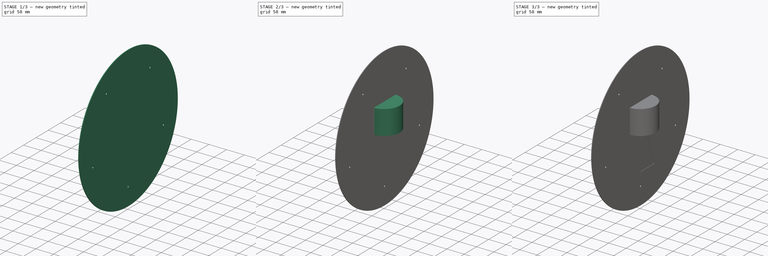
[diagram: build sequence overview — one tinted view per stage of 3, left to right]
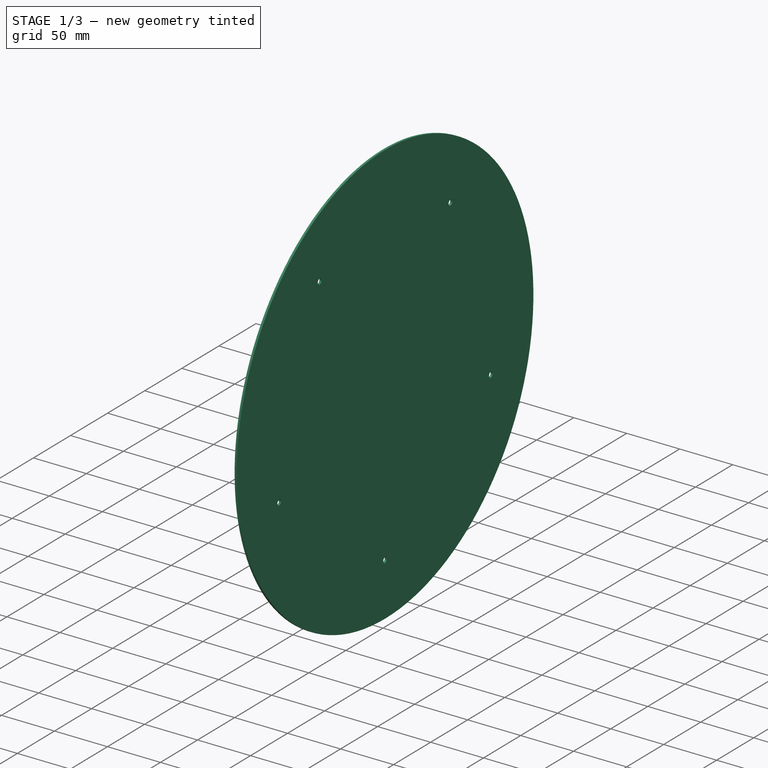
[diagram: stage 1 of 3 — iso view after this stage's code; geometry added in this stage tinted green]
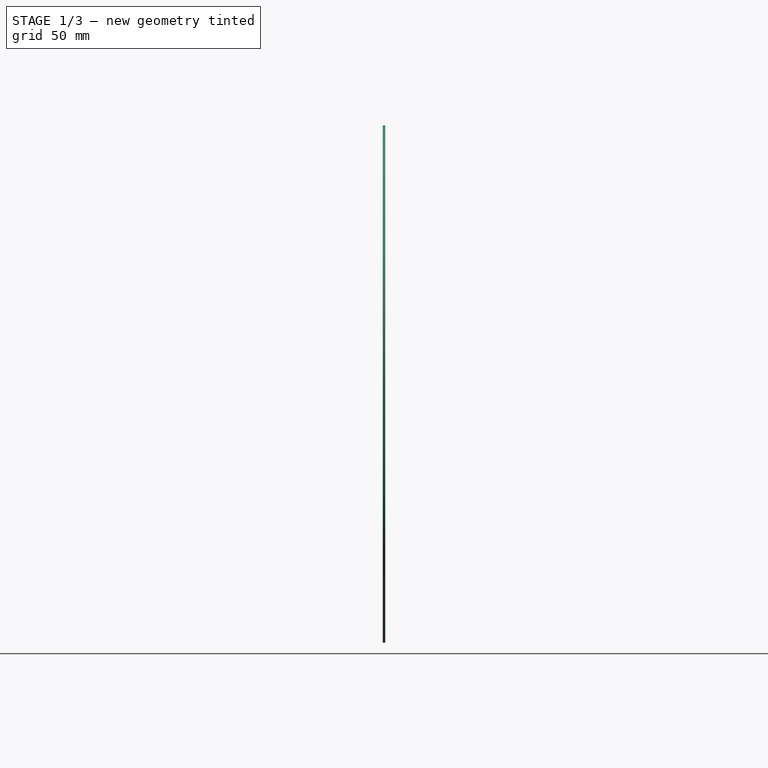
[diagram: stage 1 of 3 — front view after this stage's code; geometry added in this stage tinted green]
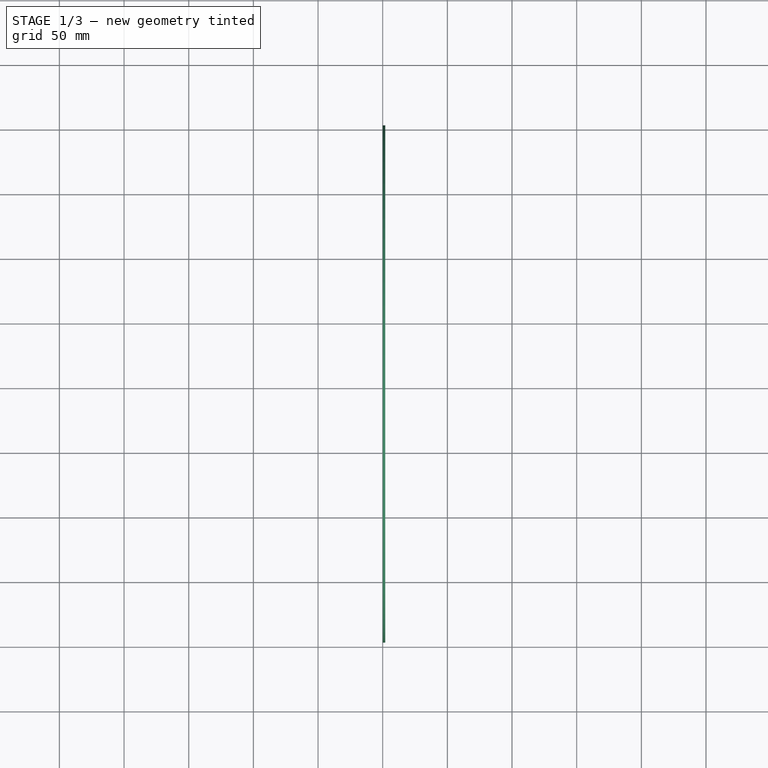
[diagram: stage 1 of 3 — top view after this stage's code; geometry added in this stage tinted green]
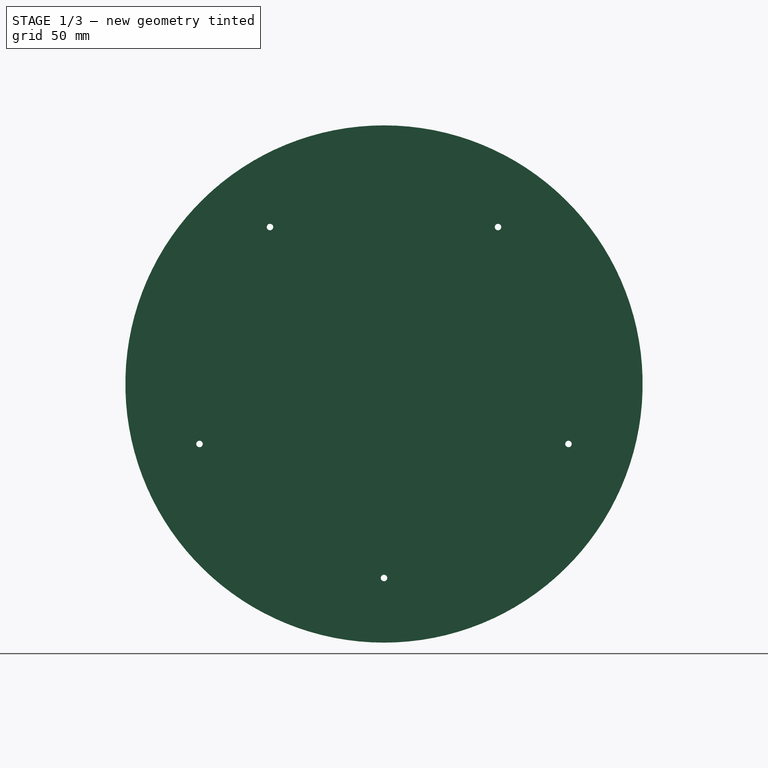
[diagram: stage 1 of 3 — right view after this stage's code; geometry added in this stage tinted green]
FCSTD DOCUMENT  (FreeCAD 0.19R24291 (Git))
Label: ferris wheel
License: All rights reserved
LicenseURL: http://en.wikipedia.org/wiki/All_rights_reserved
objects: Sketcher::SketchObject×5, PartDesign::Pad×4, PartDesign::Body×3, Spreadsheet::Sheet×1, Part::Cylinder×1, PartDesign::PolarPattern×1
note: 18 computed .brp shape members not serialized (recipe doc carries the construction recipe); baked Part::Feature solids carry a one-line shape summary decoded from their .brp

FEATURE [Sketcher::SketchObject] Sketch003
  FullyConstrained = true
  MapMode = 5
  Placement = pos=(0,0,0) rot=(0.57735,0.57735,0.57735;2.0944rad)
  Support = -> [YZ_Plane002]
  expr: Constraints[12] = Spreadsheet.bearing_ring_axle_diameter
  expr: Constraints[9] = 360 / <<Spreadsheet>>.partsNumber / 2
  expr: Constraints[6] = 360 / Spreadsheet.partsNumber
  sketch-geometry (5):
    g0: ArcOfCircle CenterX=0 CenterY=0 CenterZ=0 NormalX=0 NormalY=0 NormalZ=1 AngleXU=0 Radius=200 StartAngle=0.314159 EndAngle=1.5708
    g1: LineSegment StartX=0 StartY=0 StartZ=0 EndX=1.22e-14 EndY=200 EndZ=0
    g2: LineSegment StartX=0 StartY=0 StartZ=0 EndX=190.211 EndY=61.8034 EndZ=0
    g3: Circle CenterX=88.1678 CenterY=121.353 CenterZ=0 NormalX=0 NormalY=0 NormalZ=1 AngleXU=0 Radius=2.5
    g4: LineSegment StartX=0 StartY=0 StartZ=0 EndX=88.1678 EndY=121.353 EndZ=0
  constraints (13):
    c: Coincident(g0,g-1)
    c: PointOnObject(g0,g-2)
    c: Coincident(g1,g0)
    c: Coincident(g1,g0)
    c: Coincident(g2,g0)
    c: Coincident(g2,g0)
    c: Angle(g2,g1) = 1.25664
    c: Coincident(g4,g0)
    c: Coincident(g4,g3)
    c: Angle(g4,g-2) = 0.628319
    c: Radius(g0) = 200
    c: Distance(g4) = 150
    c: Diameter(g3) = 5
FEATURE [PartDesign::Pad] Pad003
  Direction = (1,1,1)
  Length = 2
  Length2 = 100
  Placement = pos=(0,0,0) rot=(0.57735,0.57735,0.57735;2.0944rad)
  Profile = -> Sketch003
  Type = 0
FEATURE [PartDesign::PolarPattern] PolarPattern
  Angle = 360
  Axis = -> Sketch003 [N_Axis]
  BaseFeature = -> Pad003
  Occurrences = 5
  Originals = -> [Pad003]
  Placement = pos=(0,0,0) rot=(0.57735,0.57735,0.57735;2.0944rad)
FEATURE [Sketcher::SketchObject] Sketch004
  FullyConstrained = true
  MapMode = 5
  Placement = pos=(0,0,0) rot=(0.57735,0.57735,0.57735;2.0944rad)
  Support = -> [YZ_Plane002]
FEATURE [PartDesign::Body] Body002
  Group = -> [Sketch003,Pad003,PolarPattern,Sketch004]
  Origin = -> Origin002
  Tip = -> PolarPattern
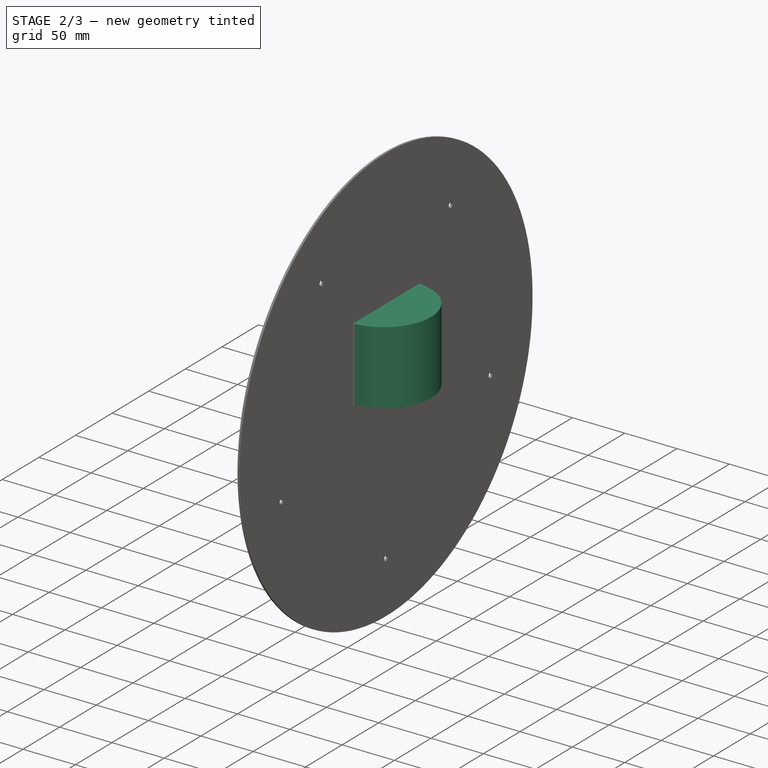
[diagram: stage 2 of 3 — iso view after this stage's code; geometry added in this stage tinted green]
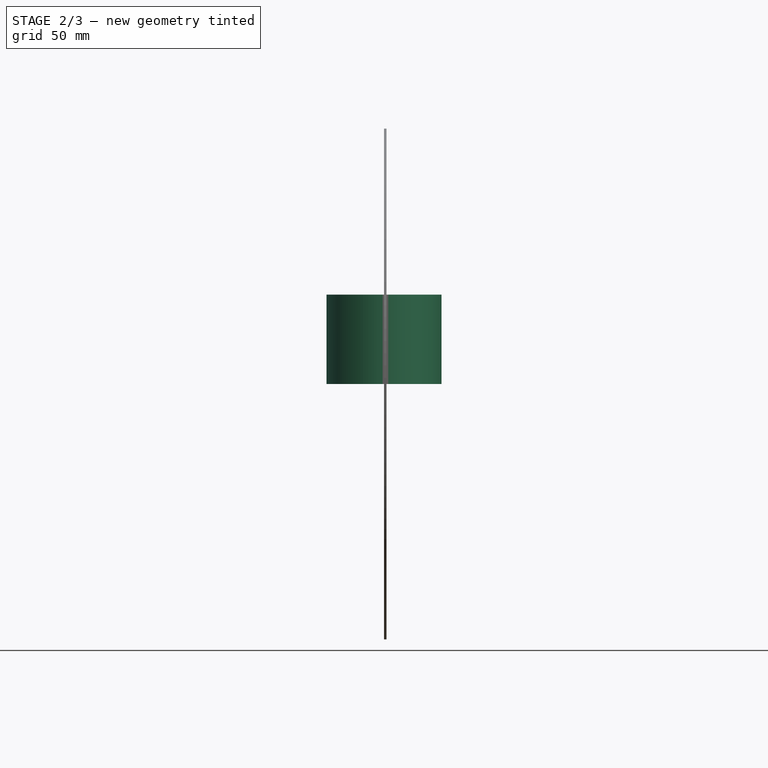
[diagram: stage 2 of 3 — front view after this stage's code; geometry added in this stage tinted green]
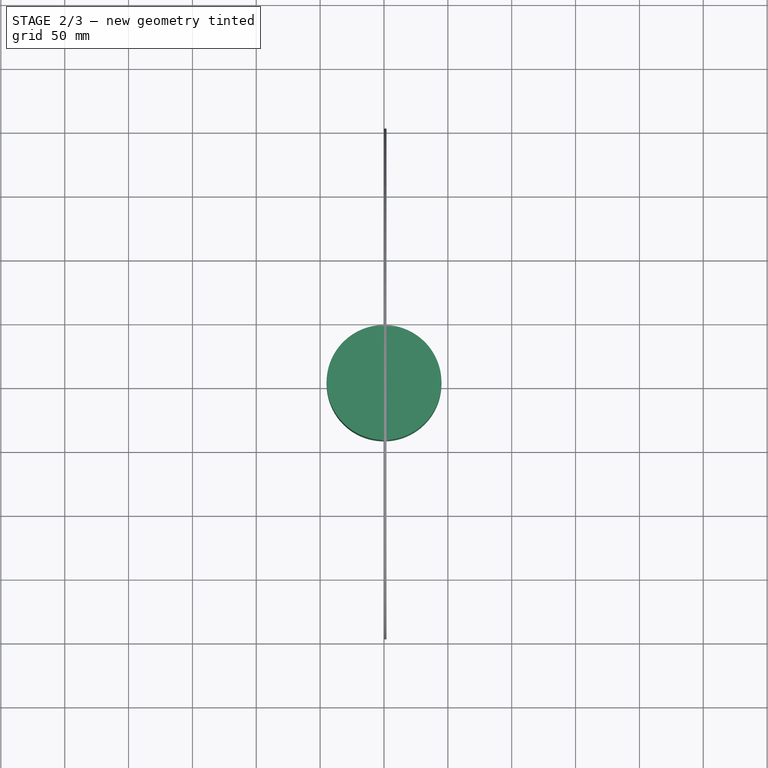
[diagram: stage 2 of 3 — top view after this stage's code; geometry added in this stage tinted green]
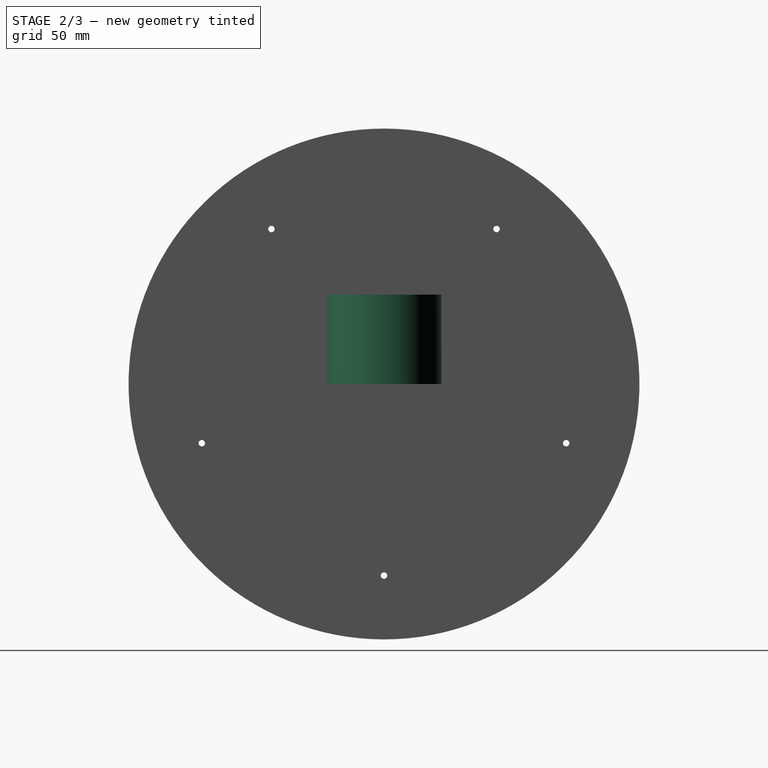
[diagram: stage 2 of 3 — right view after this stage's code; geometry added in this stage tinted green]
FEATURE [PartDesign::Body] Body
  Group = -> [Sketch,Pad]
  Origin = -> Origin
  Tip = -> Pad
FEATURE [Sketcher::SketchObject] Sketch001
  FullyConstrained = false
  MapMode = 5
  Placement = pos=(0,0,0) rot=(0.57735,0.57735,0.57735;2.0944rad)
  Support = -> [YZ_Plane001]
  expr: Constraints[5] = 360 / Spreadsheet.partsNumber
  sketch-geometry (3):
    g0: LineSegment StartX=2.797e-13 StartY=0 StartZ=0 EndX=2.797e-13 EndY=25.6524 EndZ=0
    g1: LineSegment StartX=2.797e-13 StartY=0 StartZ=0 EndX=24.3969 EndY=7.92704 EndZ=0
    g2: ArcOfCircle CenterX=2.797e-13 CenterY=0 CenterZ=0 NormalX=0 NormalY=0 NormalZ=1 AngleXU=0 Radius=25.6524 StartAngle=0.314159 EndAngle=1.5708
  constraints (7):
    c: Coincident(g0,g-1)
    c: Coincident(g1,g0)
    c: Coincident(g2,g0)
    c: Coincident(g2,g0)
    c: Coincident(g2,g1)
    c: Angle(g1,g0) = 1.25664
    c: Vertical(g0)
FEATURE [PartDesign::Pad] Pad001
  Direction = (1,1,1)
  Length = 10
  Length2 = 100
  Placement = pos=(0,0,0) rot=(0.57735,0.57735,0.57735;2.0944rad)
  Profile = -> Sketch001
  Type = 0
FEATURE [PartDesign::Body] Body001
  Group = -> [Sketch001,Pad001,Sketch002,Pad002]
  Origin = -> Origin001
  Tip = -> Pad002
FEATURE [Part::Cylinder] Cylinder
  Angle = 360
  AttacherType = Attacher::AttachEngine3D
  Height = 70
  Radius = 45
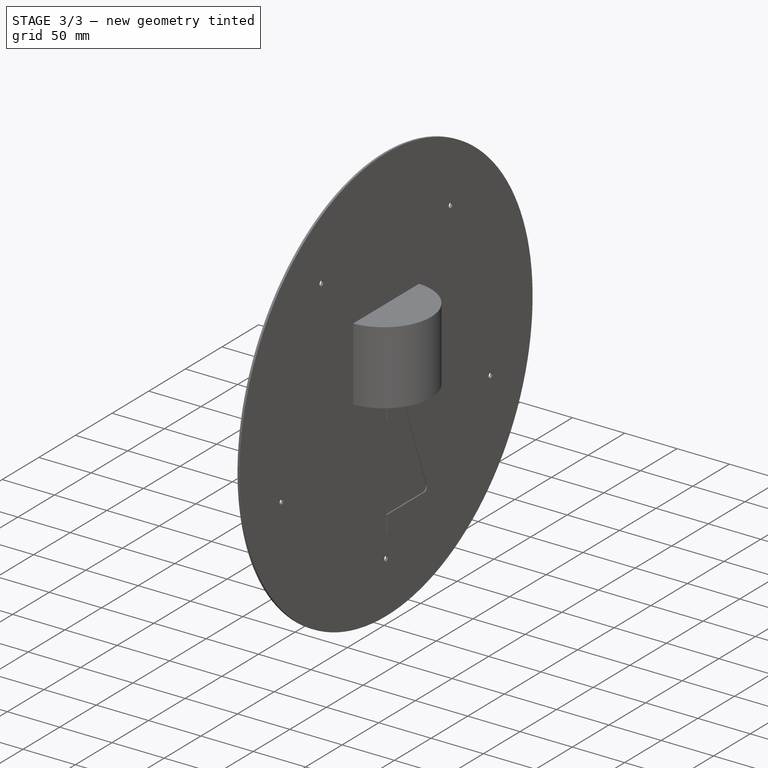
[diagram: stage 3 of 3 — iso view after this stage's code; geometry added in this stage tinted green]
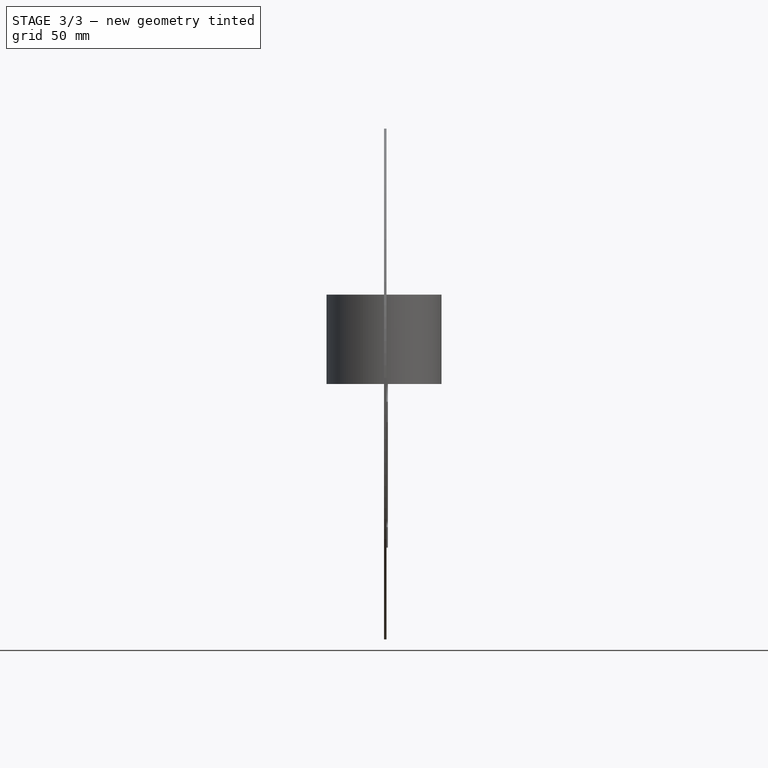
[diagram: stage 3 of 3 — front view after this stage's code; geometry added in this stage tinted green]
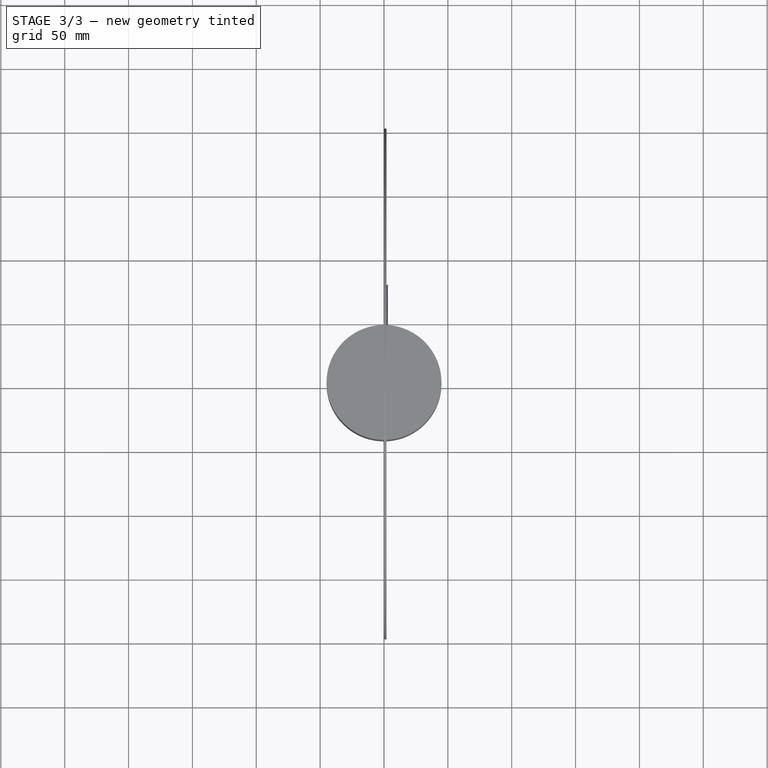
[diagram: stage 3 of 3 — top view after this stage's code; geometry added in this stage tinted green]
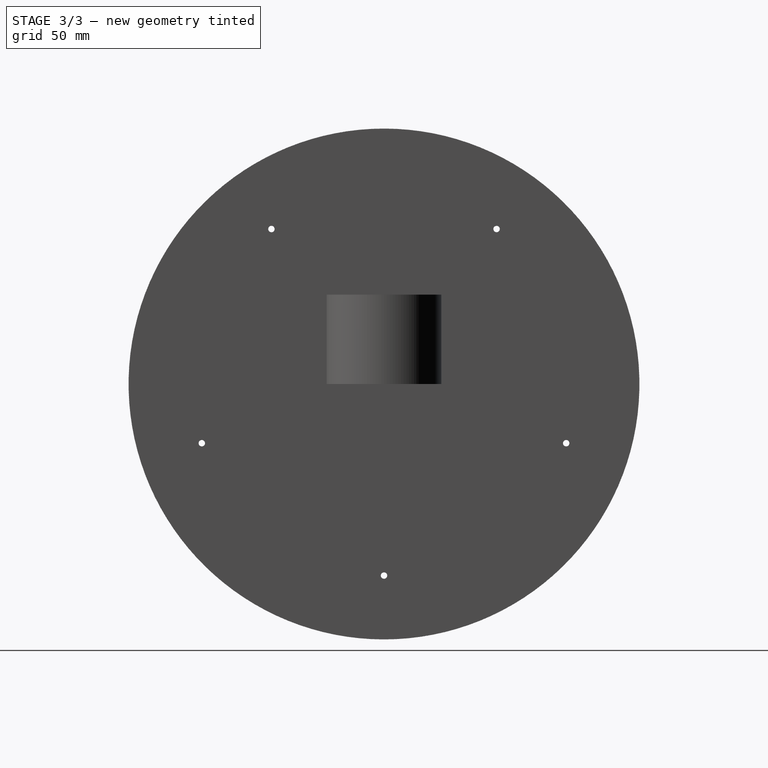
[diagram: stage 3 of 3 — right view after this stage's code; geometry added in this stage tinted green]
FEATURE [Sketcher::SketchObject] Sketch
  FullyConstrained = false
  MapMode = 5
  Placement = pos=(0,0,0) rot=(0.57735,0.57735,0.57735;2.0944rad)
  Support = -> [YZ_Plane]
  sketch-geometry (13):
    g0: ArcOfCircle CenterX=0 CenterY=0 CenterZ=0 NormalX=0 NormalY=0 NormalZ=1 AngleXU=0 Radius=13.8516 StartAngle=4.71239 EndAngle=7.85398
    g1: ArcOfCircle CenterX=0 CenterY=0 CenterZ=0 NormalX=0 NormalY=0 NormalZ=1 AngleXU=0 Radius=29.8516 StartAngle=0.368622 EndAngle=1.5708
    g2: LineSegment StartX=79.8559 StartY=-128.084 StartZ=0 EndX=0 EndY=-128.084 EndZ=0
    g3: LineSegment StartX=0 StartY=-128.084 StartZ=0 EndX=0 EndY=-112.084 EndZ=0
    g4: LineSegment StartX=0 StartY=-112.084 StartZ=0 EndX=50.7661 EndY=-112.084 EndZ=0
    g5: LineSegment StartX=54.2401 StartY=-107.125 StartZ=0 EndX=22.4523 EndY=-19.6725 EndZ=0
    g6: ArcOfCircle CenterX=0 CenterY=0 CenterZ=0 NormalX=0 NormalY=0 NormalZ=1 AngleXU=0 Radius=29.8516 StartAngle=4.71239 EndAngle=5.56368
    g7: LineSegment StartX=-2.5e-15 StartY=-29.8516 StartZ=0 EndX=-2.5e-15 EndY=-13.8516 EndZ=0
    g8: LineSegment StartX=4.2e-15 StartY=13.8516 StartZ=0 EndX=4.2e-15 EndY=29.8516 EndZ=0
    g9: ArcOfCircle CenterX=50.7661 CenterY=-108.387 CenterZ=0 NormalX=0 NormalY=0 NormalZ=1 AngleXU=0 Radius=3.69636 StartAngle=4.71239 EndAngle=6.63182
    g10: LineSegment StartX=27.8463 StartY=10.7564 StartZ=0 EndX=78.3434 EndY=-119.971 EndZ=0
    g11: ArcOfCircle CenterX=57.3409 CenterY=-128.084 CenterZ=0 NormalX=0 NormalY=0 NormalZ=1 AngleXU=0 Radius=22.515 StartAngle=0 EndAngle=0.368622
    g12: LineSegment StartX=22.4523 StartY=-19.6725 StartZ=0 EndX=37.2458 EndY=-13.5771 EndZ=0
  constraints (34):
    c: Coincident(g0,g-1)
    c: Coincident(g1,g0)
    c: PointOnObject(g1,g-2)
    c: Horizontal(g2)
    c: PointOnObject(g2,g-2)
    c: Coincident(g3,g2)
    c: PointOnObject(g3,g-2)
    c: Coincident(g4,g3)
    c: Horizontal(g4)
    c: Coincident(g6,g0)
    c: Coincident(g6,g5)
    c: PointOnObject(g6,g-2)
    c: Coincident(g7,g6)
    c: Vertical(g7)
    c: Coincident(g8,g1)
    c: Vertical(g8)
    c: Coincident(g0,g7)
    c: Coincident(g0,g8)
    c: Coincident(g9,g4)
    c: Coincident(g9,g5)
    c: Coincident(g10,g1)
    c: PointOnObject(g11,g2)
    c: Coincident(g11,g10)
    c: Coincident(g11,g2)
    c: Tangent(g11,g10)
    c: Tangent(g10,g1)
    c: Tangent(g9,g5)
    c: Tangent(g9,g4)
    c: PointOnObject(g12,g10)
    c: Coincident(g12,g5)
    c: Equal(g7,g12)
    c: Equal(g12,g8)
    c: Equal(g8,g3)
    c: Distance(g12) = 16
FEATURE [PartDesign::Pad] Pad
  Direction = (1,1,1)
  Length = 3
  Length2 = 100
  Placement = pos=(0,0,0) rot=(0.57735,0.57735,0.57735;2.0944rad)
  Profile = -> Sketch
  Type = 0
FEATURE [Spreadsheet::Sheet] Spreadsheet
  cells = C3(main_axle_diameter)=10; E3(partsNumber)=5; C4(bearing_ring_axle_diameter)=5; C5(bearing_ring_axle_offset)==150mm
FEATURE [Sketcher::SketchObject] Sketch002
  FullyConstrained = true
  MapMode = 5
  Placement = pos=(0,0,0) rot=(0.57735,0.57735,0.57735;2.0944rad)
  Support = -> [YZ_Plane001]
  expr: Constraints[7] = Spreadsheet.main_axle_diameter
  expr: Constraints[6] = 360 / Spreadsheet.partsNumber
  sketch-geometry (3):
    g0: ArcOfCircle CenterX=0 CenterY=0 CenterZ=0 NormalX=0 NormalY=0 NormalZ=1 AngleXU=0 Radius=5 StartAngle=0.314159 EndAngle=1.5708
    g1: LineSegment StartX=0 StartY=0 StartZ=0 EndX=3e-16 EndY=5 EndZ=0
    g2: LineSegment StartX=0 StartY=0 StartZ=0 EndX=4.75528 EndY=1.54508 EndZ=0
  constraints (8):
    c: Coincident(g0,g-1)
    c: PointOnObject(g0,g-2)
    c: Coincident(g1,g0)
    c: Coincident(g1,g0)
    c: Coincident(g2,g0)
    c: Coincident(g2,g0)
    c: Angle(g2,g1) = 1.25664
    c: Diameter(g0) = 10
FEATURE [PartDesign::Pad] Pad002
  BaseFeature = -> Pad001
  Direction = (1,1,1)
  Length = 24
  Length2 = 100
  Placement = pos=(0,0,0) rot=(0.57735,0.57735,0.57735;2.0944rad)
  Profile = -> Sketch002
  Type = 0
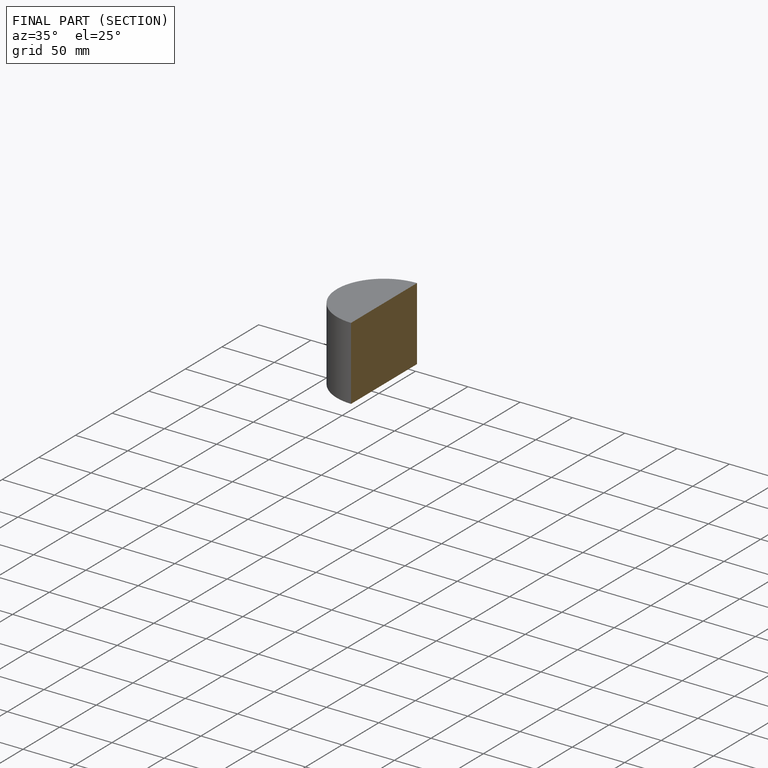
[diagram: finished part — half-section view (interior)]
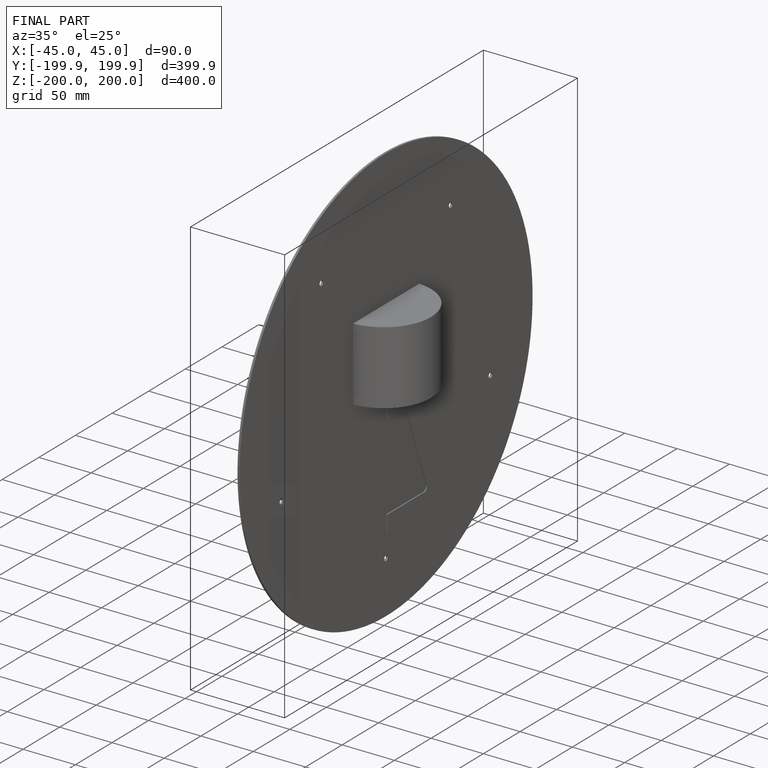
[diagram: finished part — iso view with bounding-box wireframe]
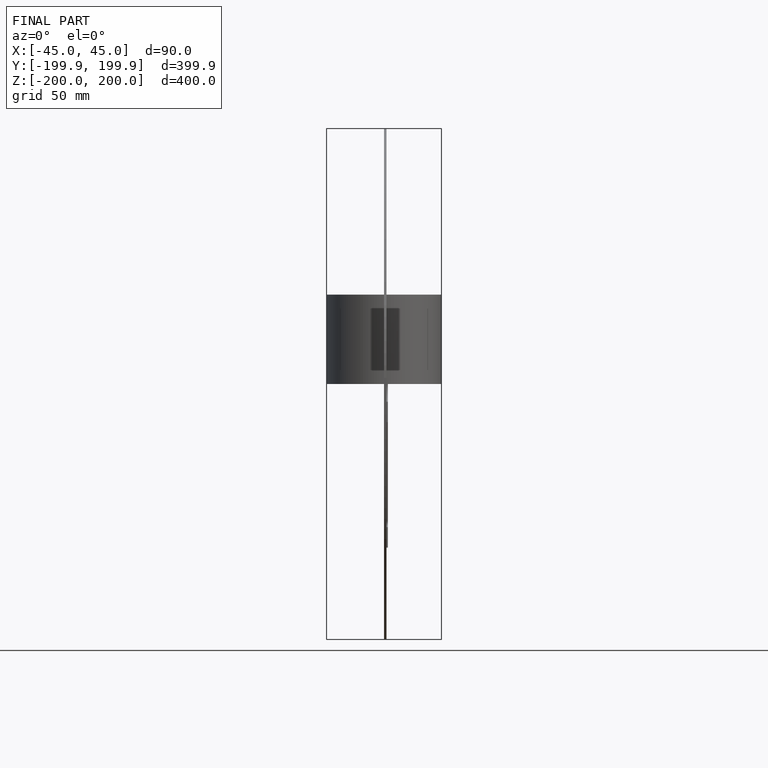
[diagram: finished part — front view with bounding-box wireframe]
